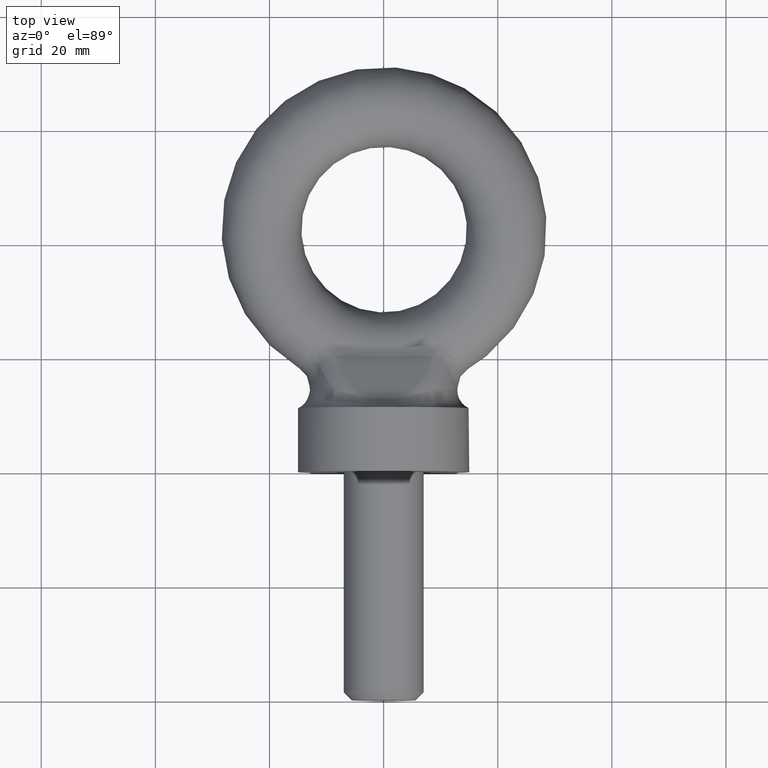
[diagram: clean part render]
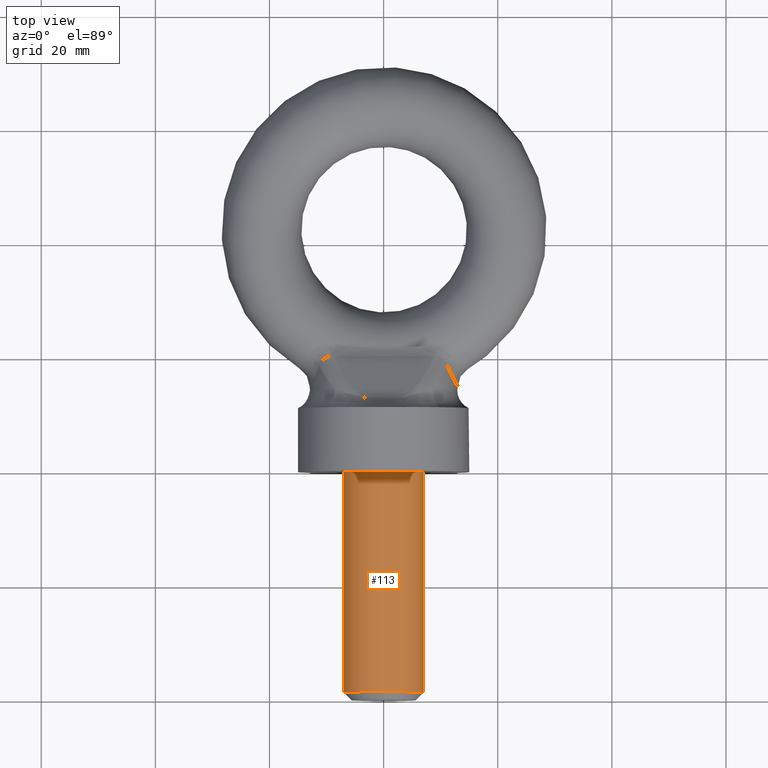
[diagram: same view with one face highlighted and labeled with its STEP entity id]
A machine part, top view. The second image highlights one B-rep face of the part: STEP entity #113.
In plain terms, the highlighted cylindrical surface (bore or boss wall) has radius 7 mm, axis along (0, 1, 0).
Its self-contained STEP definition (entity closure, byte-faithful):
#74=FACE_BOUND('',#173,.T.);
#75=FACE_BOUND('',#174,.T.);
#113=ADVANCED_FACE('',(#74,#75),#136,.T.);
#136=CYLINDRICAL_SURFACE('',#493,7.);
#173=EDGE_LOOP('',(#283));
#174=EDGE_LOOP('',(#284));
#223=CIRCLE('',#491,7.);
#224=CIRCLE('',#492,6.99999999999999);
#283=ORIENTED_EDGE('',*,*,#431,.T.);
#284=ORIENTED_EDGE('',*,*,#432,.F.);
#387=VERTEX_POINT('',#848);
#388=VERTEX_POINT('',#850);
#431=EDGE_CURVE('',#387,#387,#223,.T.);
#432=EDGE_CURVE('',#388,#388,#224,.T.);
#491=AXIS2_PLACEMENT_3D('',#847,#559,#560);
#492=AXIS2_PLACEMENT_3D('',#849,#561,#562);
#493=AXIS2_PLACEMENT_3D('',#851,#563,#564);
#559=DIRECTION('',(2.77823198355395E-18,1.,0.));
#560=DIRECTION('',(-1.,0.,0.));
#561=DIRECTION('',(2.77823198355395E-18,1.,0.));
#562=DIRECTION('',(-1.,2.77823198355395E-18,0.));
#563=DIRECTION('',(2.77823198355395E-18,1.,0.));
#564=DIRECTION('',(-1.,0.,0.));
#847=CARTESIAN_POINT('',(-1.65582626219815E-16,-38.6,0.));
#848=CARTESIAN_POINT('',(-7.,-38.6,0.));
#849=CARTESIAN_POINT('',(-5.83428716546329E-17,0.,0.));
#850=CARTESIAN_POINT('',(-6.99999999999999,1.94476238848776E-17,0.));
#851=CARTESIAN_POINT('',(-1.69472150996791E-16,-40.,0.));